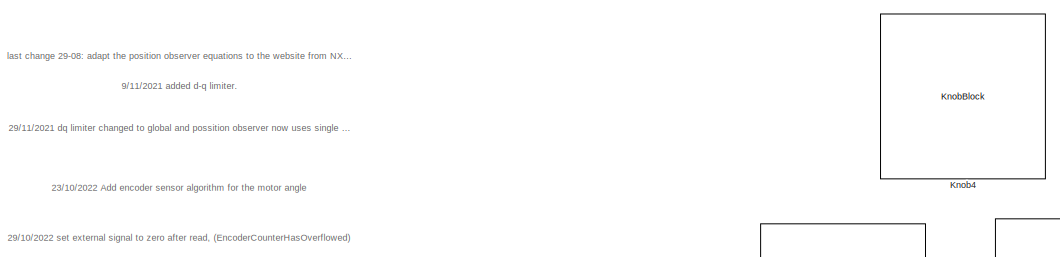
[diagram: root canvas - part 1/5, top right region]
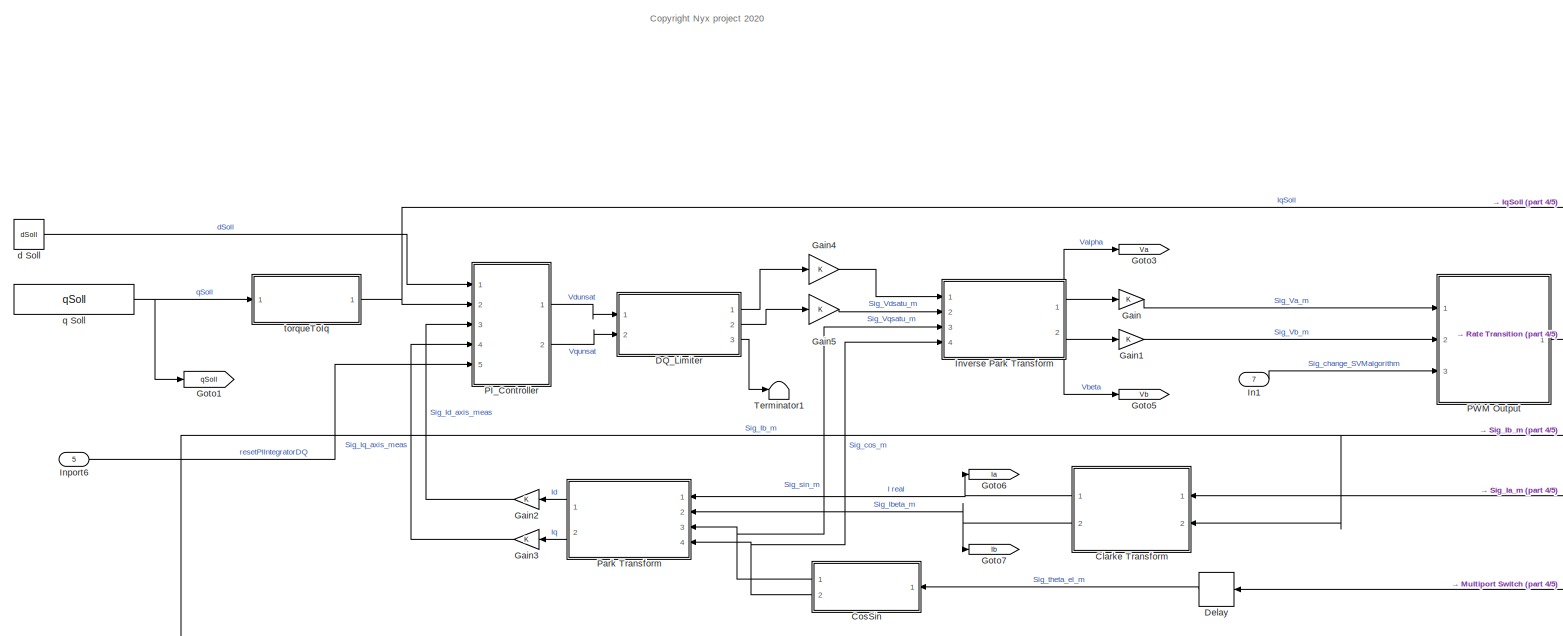
[diagram: root canvas - part 2/5, top left region]
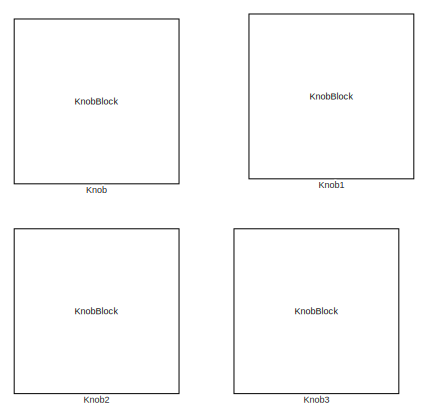
[diagram: root canvas - part 3/5, top right region]
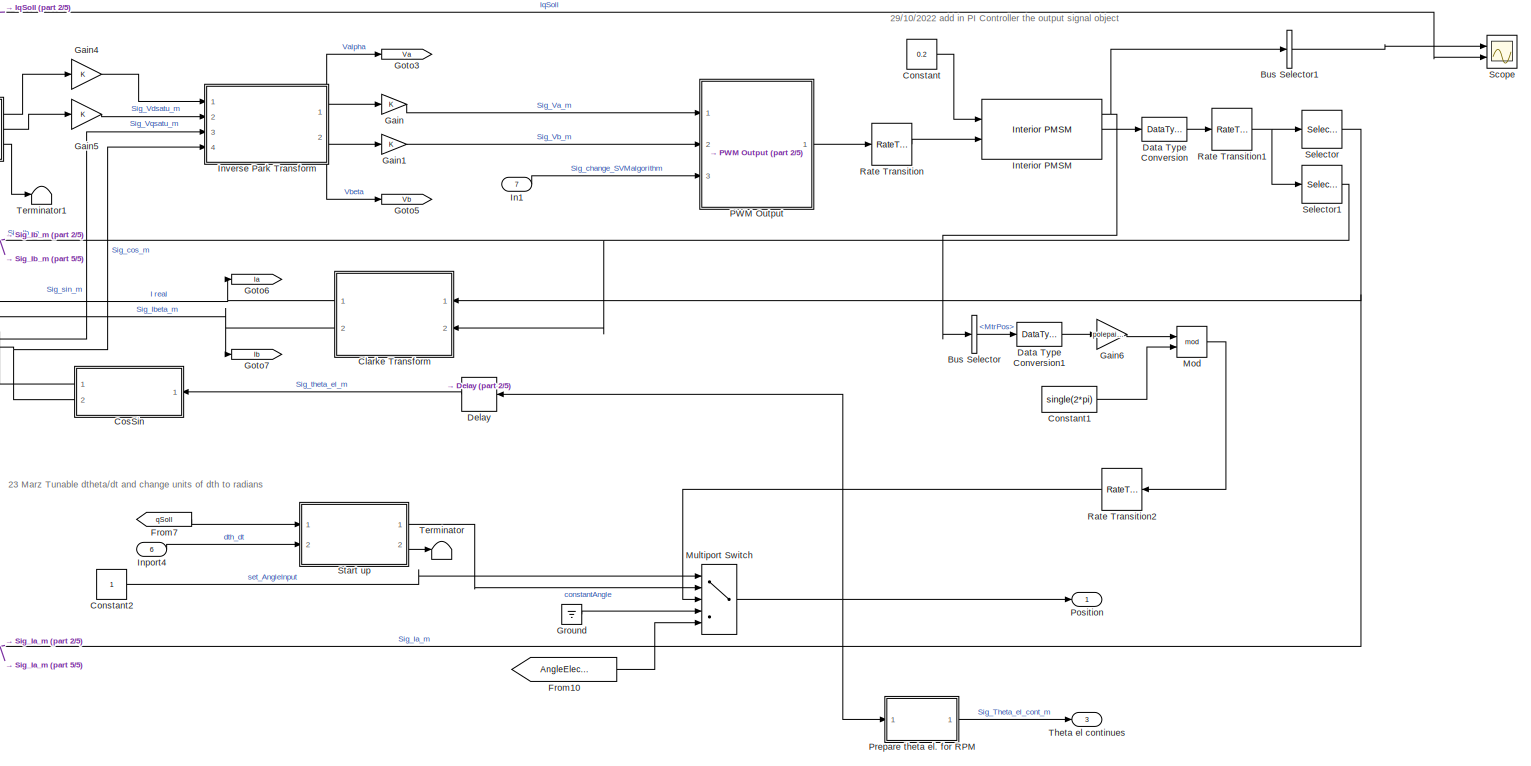
[diagram: root canvas - part 4/5, central region]
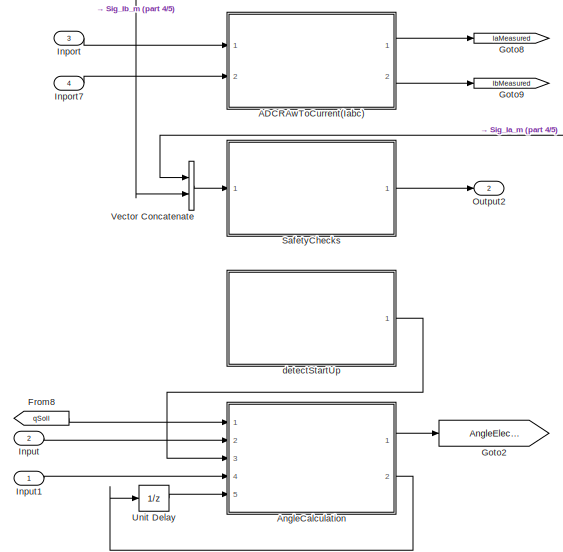
[diagram: root canvas - part 5/5, bottom left region]
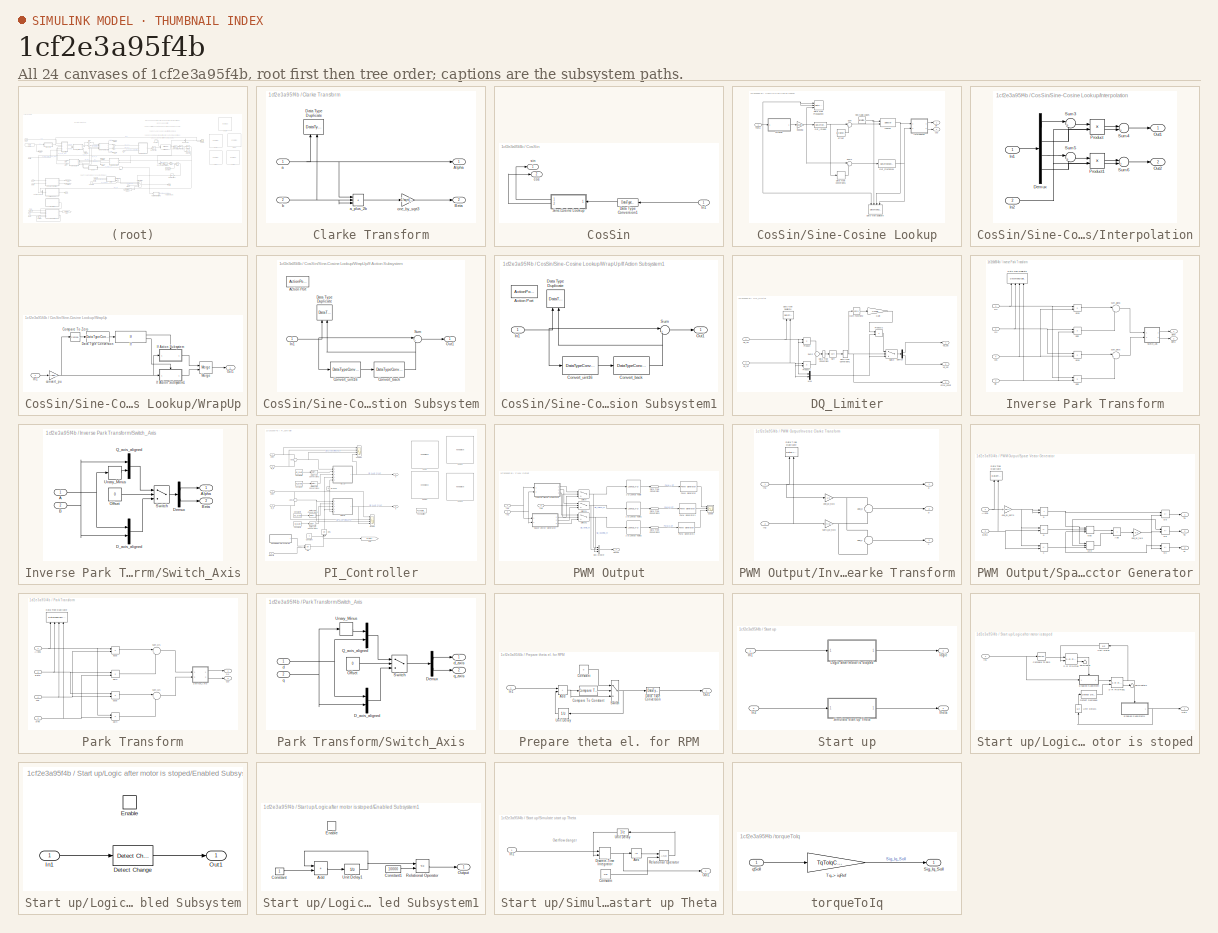
[diagram: thumbnail index - all 24 canvases of the model, root first then tree order]
MODEL slx_1cf2e3a95f4b
KIND model
CONFIG AbsTol = auto
CONFIG EnableMultiTasking = off
CONFIG FixedStep = 1e-6
CONFIG MaxStep = auto
CONFIG MinStep = auto
CONFIG RelTol = 1e-3
CONFIG SampleTimeConstraint = Unconstrained
CONFIG SolverName = FixedStepDiscrete
CONFIG StartTime = 0.0
CONFIG StopTime = 10
BLOCK [ModelReference] ADCRAwToCurrent(Iabc)
  ModelNameDialog = ADCRawToIab
  ModelReferenceVersion = 3.11
  Ports = [2, 2]
BLOCK [ModelReference] AngleCalculation
  ModelNameDialog = ConvertPWMtoAngle.slx
  ModelReferenceVersion = 3.7
  Ports = [5, 2]
BLOCK [BusSelector] Bus Selector
  OutputSignals = MtrPos
  Ports = [1, 1]
BLOCK [BusSelector] Bus Selector1
  OutputAsBus = on
  OutputSignals = MtrPos,IcStator,IbStator,IaStator
  Ports = [1, 1]
BLOCK [SubSystem] Clarke Transform
  NameLocation = top
  Ports = [2, 2]
  RequestExecContextInheritance = off
  VariantControl = Variant2
BLOCK [Outport] Clarke Transform/Alpha
  VectorParamsAs1DForOutWhenUnconnected = off
BLOCK [Outport] Clarke Transform/Beta
  Port = 2
  VectorParamsAs1DForOutWhenUnconnected = off
BLOCK [DataTypeDuplicate] Clarke Transform/Data Type Duplicate
  NameLocation = right
  Ports = [2]
BLOCK [Inport] Clarke Transform/a
BLOCK [Sum] Clarke Transform/a_plus_2b
  AccumDataTypeStr = Inherit: Same as first input
  IconShape = rectangular
  Inputs = +++
  OutDataTypeStr = Inherit: Same as first input
  Ports = [3, 1]
  RndMeth = Simplest
BLOCK [Inport] Clarke Transform/b
  Port = 2
BLOCK [Gain] Clarke Transform/one_by_sqrt3
  Gain = 1/sqrt(3)
  OutDataTypeStr = Inherit: Same as input
  RndMeth = Simplest
BLOCK [Constant] Constant
  Value = 0.2
BLOCK [Constant] Constant1
  OutDataTypeStr = single
  Value = single(2*pi)
BLOCK [Constant] Constant2
BLOCK [SubSystem] CosSin
  NameLocation = top
  Ports = [1, 2]
  RequestExecContextInheritance = off
BLOCK [DataTypeConversion] CosSin/Data Type Conversion1
  NameLocation = top
  RndMeth = Floor
  SaturateOnIntegerOverflow = off
BLOCK [Inport] CosSin/In1
BLOCK [SubSystem] CosSin/Sine-Cosine Lookup
  NameLocation = top
  Ports = [1, 2]
  RequestExecContextInheritance = off
BLOCK [DataTypeConversion] CosSin/Sine-Cosine Lookup/Data Type Conversion1
  RndMeth = Simplest
  SaturateOnIntegerOverflow = off
BLOCK [DataTypeDuplicate] CosSin/Sine-Cosine Lookup/Data Type Duplicate
  NameLocation = left
  NumInputPorts = 4
  Ports = [4]
BLOCK [Reference] CosSin/Sine-Cosine Lookup/Data Type Propagation  REF=simulink/Signal
Attributes/Data Type
Propagation
  Ports = [3]
  SourceBlock = simulink/Signal\nAttributes/Data Type\nPropagation
  SourceProductBaseCode = SL
  SourceType = Data Type Propagation
BLOCK [DataTypeConversion] CosSin/Sine-Cosine Lookup/Get_FractionVal
  RndMeth = Simplest
  SaturateOnIntegerOverflow = off
BLOCK [DataTypeConversion] CosSin/Sine-Cosine Lookup/Get_Integer
  OutDataTypeStr = uint16
  RndMeth = Simplest
  SaturateOnIntegerOverflow = off
BLOCK [SubSystem] CosSin/Sine-Cosine Lookup/Interpolation
  Ports = [2, 2]
  RequestExecContextInheritance = off
BLOCK [Demux] CosSin/Sine-Cosine Lookup/Interpolation/Demux
  Ports = [1, 4]
BLOCK [Inport] CosSin/Sine-Cosine Lookup/Interpolation/In1
BLOCK [Inport] CosSin/Sine-Cosine Lookup/Interpolation/In2
  Port = 2
BLOCK [Outport] CosSin/Sine-Cosine Lookup/Interpolation/Out1
BLOCK [Outport] CosSin/Sine-Cosine Lookup/Interpolation/Out2
  Port = 2
BLOCK [Product] CosSin/Sine-Cosine Lookup/Interpolation/Product
  OutDataTypeStr = Inherit: Same as first input
  Ports = [2, 1]
  RndMeth = Simplest
BLOCK [Product] CosSin/Sine-Cosine Lookup/Interpolation/Product1
  OutDataTypeStr = Inherit: Same as first input
  Ports = [2, 1]
  RndMeth = Simplest
BLOCK [Sum] CosSin/Sine-Cosine Lookup/Interpolation/Sum3
  AccumDataTypeStr = Inherit: Same as first input
  Inputs = |+-
  OutDataTypeStr = Inherit: Same as first input
  Ports = [2, 1]
  RndMeth = Simplest
BLOCK [Sum] CosSin/Sine-Cosine Lookup/Interpolation/Sum4
  AccumDataTypeStr = Inherit: Same as first input
  Inputs = |++
  OutDataTypeStr = Inherit: Same as first input
  Ports = [2, 1]
  RndMeth = Simplest
BLOCK [Sum] CosSin/Sine-Cosine Lookup/Interpolation/Sum5
  AccumDataTypeStr = Inherit: Same as first input
  Inputs = |+-
  OutDataTypeStr = Inherit: Same as first input
  Ports = [2, 1]
  RndMeth = Simplest
BLOCK [Sum] CosSin/Sine-Cosine Lookup/Interpolation/Sum6
  AccumDataTypeStr = Inherit: Same as first input
  Inputs = |++
  OutDataTypeStr = Inherit: Same as first input
  Ports = [2, 1]
  RndMeth = Simplest
BLOCK [Selector] CosSin/Sine-Cosine Lookup/Lookup
  IndexMode = Zero-based
  IndexOptions = Index vector (port)
  Indices = [1 3]
  InputPortWidth = dlgSett.size
  OutputSizes = 1
  Ports = [2, 1]
BLOCK [Sum] CosSin/Sine-Cosine Lookup/Sum
  AccumDataTypeStr = uint32
  Inputs = |++
  OutDataTypeStr = uint32
  Ports = [2, 1]
  RndMeth = Simplest
BLOCK [Sum] CosSin/Sine-Cosine Lookup/Sum2
  AccumDataTypeStr = Inherit: Same as first input
  Inputs = |+-
  OutDataTypeStr = Inherit: Same as first input
  Ports = [2, 1]
  RndMeth = Simplest
BLOCK [Inport] CosSin/Sine-Cosine Lookup/Theta
BLOCK [SubSystem] CosSin/Sine-Cosine Lookup/WrapUp
  Ports = [1, 1]
  RequestExecContextInheritance = off
BLOCK [Reference] CosSin/Sine-Cosine Lookup/WrapUp/Compare To Zero  REF=simulink/Logic and Bit
Operations/Compare
To Zero
  Ports = [1, 1]
  SourceBlock = simulink/Logic and Bit\nOperations/Compare\nTo Zero
  SourceProductBaseCode = SL
  SourceType = Compare To Zero
BLOCK [DataTypeConversion] CosSin/Sine-Cosine Lookup/WrapUp/Data Type Conversion
  ConvertRealWorld = Stored Integer (SI)
  OutDataTypeStr = uint16
  RndMeth = Simplest
  SaturateOnIntegerOverflow = off
BLOCK [If] CosSin/Sine-Cosine Lookup/WrapUp/If
  Ports = [1, 2]
BLOCK [SubSystem] CosSin/Sine-Cosine Lookup/WrapUp/If Action Subsystem
  Ports = [1, 1, 0, 0, 0, 0, 0, 1]
  RequestExecContextInheritance = off
  TreatAsAtomicUnit = on
BLOCK [ActionPort] CosSin/Sine-Cosine Lookup/WrapUp/If Action Subsystem/Action Port
  ActionPortLabel = if(u1 > 0)
BLOCK [DataTypeConversion] CosSin/Sine-Cosine Lookup/WrapUp/If Action Subsystem/Convert_back
  RndMeth = Simplest
  SaturateOnIntegerOverflow = off
BLOCK [DataTypeConversion] CosSin/Sine-Cosine Lookup/WrapUp/If Action Subsystem/Convert_uint16
  OutDataTypeStr = int16
  RndMeth = Floor
  SaturateOnIntegerOverflow = off
BLOCK [DataTypeDuplicate] CosSin/Sine-Cosine Lookup/WrapUp/If Action Subsystem/Data Type Duplicate
  NameLocation = right
  Ports = [2]
BLOCK [Inport] CosSin/Sine-Cosine Lookup/WrapUp/If Action Subsystem/In1
BLOCK [Outport] CosSin/Sine-Cosine Lookup/WrapUp/If Action Subsystem/Out1
BLOCK [Sum] CosSin/Sine-Cosine Lookup/WrapUp/If Action Subsystem/Sum
  Inputs = |+-
  OutDataTypeStr = Inherit: Same as first input
  Ports = [2, 1]
  RndMeth = Simplest
BLOCK [SubSystem] CosSin/Sine-Cosine Lookup/WrapUp/If Action Subsystem1
  Ports = [1, 1, 0, 0, 0, 0, 0, 1]
  RequestExecContextInheritance = off
  TreatAsAtomicUnit = on
BLOCK [ActionPort] CosSin/Sine-Cosine Lookup/WrapUp/If Action Subsystem1/Action Port
  ActionPortLabel = else
BLOCK [DataTypeConversion] CosSin/Sine-Cosine Lookup/WrapUp/If Action Subsystem1/Convert_back
  RndMeth = Simplest
  SaturateOnIntegerOverflow = off
BLOCK [DataTypeConversion] CosSin/Sine-Cosine Lookup/WrapUp/If Action Subsystem1/Convert_uint16
  OutDataTypeStr = int16
  RndMeth = Simplest
  SaturateOnIntegerOverflow = off
BLOCK [DataTypeDuplicate] CosSin/Sine-Cosine Lookup/WrapUp/If Action Subsystem1/Data Type Duplicate
  NameLocation = right
  Ports = [2]
BLOCK [Inport] CosSin/Sine-Cosine Lookup/WrapUp/If Action Subsystem1/In1
BLOCK [Outport] CosSin/Sine-Cosine Lookup/WrapUp/If Action Subsystem1/Out1
BLOCK [Sum] CosSin/Sine-Cosine Lookup/WrapUp/If Action Subsystem1/Sum
  Inputs = |+-
  OutDataTypeStr = Inherit: Same as first input
  Ports = [2, 1]
  RndMeth = Simplest
BLOCK [Inport] CosSin/Sine-Cosine Lookup/WrapUp/In1
BLOCK [Merge] CosSin/Sine-Cosine Lookup/WrapUp/Merge
  Ports = [2, 1]
BLOCK [Outport] CosSin/Sine-Cosine Lookup/WrapUp/Out1
BLOCK [Gain] CosSin/Sine-Cosine Lookup/WrapUp/convert_pu
  Gain = 1/(dlgSett.UpperSatLimit)
  OutDataTypeStr = Inherit: Same as input
  RndMeth = Simplest
BLOCK [Outport] CosSin/Sine-Cosine Lookup/cos
  Port = 2
  VectorParamsAs1DForOutWhenUnconnected = off
BLOCK [Gain] CosSin/Sine-Cosine Lookup/indexing
  Gain = dlgSett.index_gain
  OutDataTypeStr = Inherit: Inherit via back propagation
  RndMeth = Simplest
BLOCK [Constant] CosSin/Sine-Cosine Lookup/offset
  OutDataTypeStr = int16
  SampleTime = -1
  Value = [1 0 (dlgSett.Offset+1) dlgSett.Offset]
BLOCK [Outport] CosSin/Sine-Cosine Lookup/sin
  NameLocation = top
  VectorParamsAs1DForOutWhenUnconnected = off
BLOCK [Constant] CosSin/Sine-Cosine Lookup/sine_table_values
  NameLocation = top
  OutDataTypeStr = Inherit: Inherit via back propagation
  SampleTime = -1
  Value = dlgSett.sin_table
BLOCK [Outport] CosSin/cos
  Port = 2
BLOCK [Outport] CosSin/sin
BLOCK [SubSystem] DQ_Limiter
  Ports = [2, 3]
  RTWFcnNameOpts = Use subsystem name
  RTWSystemCode = Reusable function
  RequestExecContextInheritance = off
  SystemSampleTime = 4*Ts
  TreatAsAtomicUnit = on
BLOCK [DataTypeConversion] DQ_Limiter/Data Type Conversion
  OutDataTypeStr = single
  RndMeth = Floor
  SaturateOnIntegerOverflow = off
BLOCK [DataTypeConversion] DQ_Limiter/Data Type Conversion1
  RndMeth = Floor
  SaturateOnIntegerOverflow = off
BLOCK [DataTypeDuplicate] DQ_Limiter/Data Type Duplicate
  NameLocation = right
  Ports = [2]
BLOCK [Demux] DQ_Limiter/Demux
  Outputs = 2
  Ports = [1, 2]
BLOCK [Gain] DQ_Limiter/Gain
  Gain = Vmax
  OutDataTypeStr = Inherit: Same as input
BLOCK [Math] DQ_Limiter/Math Function2
  Operator = reciprocal
  Ports = [1, 1]
  RndMeth = Simplest
  SaturateOnIntegerOverflow = off
  SignedPower = on
BLOCK [Mux] DQ_Limiter/Mux
  DisplayOption = bar
  Inputs = 2
  Ports = [2, 1]
BLOCK [Product] DQ_Limiter/Product
  OutDataTypeStr = Inherit: Same as first input
  Ports = [2, 1]
  RndMeth = Simplest
BLOCK [Product] DQ_Limiter/Product1
  OutDataTypeStr = Inherit: Same as first input
  Ports = [2, 1]
  RndMeth = Simplest
BLOCK [Product] DQ_Limiter/Product2
  OutDataTypeStr = Inherit: Same as first input
  Ports = [2, 1]
BLOCK [Sqrt] DQ_Limiter/Sqrt
  IntermediateResultsDataTypeStr = Inherit: Inherit from input
BLOCK [Sum] DQ_Limiter/Sum2
  AccumDataTypeStr = Inherit: Same as first input
  OutDataTypeStr = Inherit: Same as first input
  Ports = [2, 1]
BLOCK [Switch] DQ_Limiter/Switch
  InputSameDT = off
  SaturateOnIntegerOverflow = off
  Threshold = Vmax
  ZeroCross = off
BLOCK [Inport] DQ_Limiter/Vd_ref
BLOCK [Outport] DQ_Limiter/Vd_sat
  NameLocation = top
  VectorParamsAs1DForOutWhenUnconnected = off
BLOCK [Outport] DQ_Limiter/Vmax_unsat
  Port = 3
  VectorParamsAs1DForOutWhenUnconnected = off
BLOCK [Inport] DQ_Limiter/Vq_ref
  Port = 2
BLOCK [Outport] DQ_Limiter/Vq_sat
  Port = 2
  VectorParamsAs1DForOutWhenUnconnected = off
BLOCK [DataTypeConversion] Data Type Conversion
  RndMeth = Floor
  SaturateOnIntegerOverflow = off
BLOCK [DataTypeConversion] Data Type Conversion1
  RndMeth = Floor
  SaturateOnIntegerOverflow = off
BLOCK [Delay] Delay
  AttributesFormatString = %<SampleTime>
  Commented = through
  DelayLength = 1
  InputPortMap = u0
  NameLocation = top
  Ports = [1, 1]
  SampleTime = 4*Ts
BLOCK [From] From10
  GotoTag = AngleElecSensor
BLOCK [From] From7
  GotoTag = qSoll
BLOCK [From] From8
  GotoTag = qSoll
BLOCK [Gain] Gain
  OutDataTypeStr = Inherit: Same as input
  ParamDataTypeStr = Inherit: Same as input
BLOCK [Gain] Gain1
  OutDataTypeStr = Inherit: Same as input
  ParamDataTypeStr = Inherit: Same as input
BLOCK [Gain] Gain2
  NameLocation = top
  OutDataTypeStr = Inherit: Same as input
  ParamDataTypeStr = Inherit: Same as input
BLOCK [Gain] Gain3
  NameLocation = top
  OutDataTypeStr = Inherit: Same as input
  ParamDataTypeStr = Inherit: Same as input
BLOCK [Gain] Gain4
  OutDataTypeStr = Inherit: Inherit via back propagation
BLOCK [Gain] Gain5
  OutDataTypeStr = Inherit: Inherit via back propagation
BLOCK [Gain] Gain6
  Gain = polepairs
BLOCK [Goto] Goto1
  GotoTag = qSoll
BLOCK [Goto] Goto2
  GotoTag = AngleElecSensor
BLOCK [Goto] Goto3
  GotoTag = Va
BLOCK [Goto] Goto5
  GotoTag = Vb
BLOCK [Goto] Goto6
  GotoTag = Ia
BLOCK [Goto] Goto7
  GotoTag = Ib
BLOCK [Goto] Goto8
  GotoTag = IaMeasured
BLOCK [Goto] Goto9
  GotoTag = IbMeasured
BLOCK [Ground] Ground
BLOCK [Inport] In1
  Port = 7
BLOCK [Inport] Inport
  Port = 3
BLOCK [Inport] Inport4
  Port = 6
BLOCK [Inport] Inport6
  OutDataTypeStr = boolean
  Port = 5
BLOCK [Inport] Inport7
  Port = 4
BLOCK [Inport] Input
  Port = 2
BLOCK [Inport] Input1
BLOCK [Reference] Interior PMSM  REF=autolibpmsminterior/Interior PMSM
  Ports = [2, 3]
  SourceBlock = autolibpmsminterior/Interior PMSM
  SourceProductBaseCode = PW,MT,UV,VE,VP
  SourceType = Interior PMSM
BLOCK [SubSystem] Inverse Park Transform
  Ports = [4, 2]
  RequestExecContextInheritance = off
  SystemSampleTime = 250*Ts
BLOCK [Outport] Inverse Park Transform/Alpha
  VectorParamsAs1DForOutWhenUnconnected = off
BLOCK [Outport] Inverse Park Transform/Beta
  Port = 2
  VectorParamsAs1DForOutWhenUnconnected = off
BLOCK [DataTypeDuplicate] Inverse Park Transform/Data Type Duplicate
  NameLocation = right
  NumInputPorts = 4
  Ports = [4]
BLOCK [Inport] Inverse Park Transform/Ds
BLOCK [Inport] Inverse Park Transform/Qs
  Port = 2
BLOCK [SubSystem] Inverse Park Transform/Switch_Axis
  NameLocation = top
  Ports = [2, 2]
  RequestExecContextInheritance = off
BLOCK [Inport] Inverse Park Transform/Switch_Axis/A
BLOCK [Outport] Inverse Park Transform/Switch_Axis/Alpha
  VectorParamsAs1DForOutWhenUnconnected = off
BLOCK [Inport] Inverse Park Transform/Switch_Axis/B
  Port = 2
BLOCK [Outport] Inverse Park Transform/Switch_Axis/Beta
  Port = 2
  VectorParamsAs1DForOutWhenUnconnected = off
BLOCK [Mux] Inverse Park Transform/Switch_Axis/D_axis_aligned
  DisplayOption = bar
  Inputs = 2
  NameLocation = top
  Ports = [2, 1]
BLOCK [Demux] Inverse Park Transform/Switch_Axis/Demux
  Outputs = 2
  Ports = [1, 2]
BLOCK [Constant] Inverse Park Transform/Switch_Axis/Offset
  OutDataTypeStr = uint16
  SampleTime = -1
  Value = 0
BLOCK [Mux] Inverse Park Transform/Switch_Axis/Q_axis_aligned
  DisplayOption = bar
  Inputs = 2
  NameLocation = top
  Ports = [2, 1]
BLOCK [Switch] Inverse Park Transform/Switch_Axis/Switch
  Criteria = u2 > Threshold
  InputSameDT = off
  RndMeth = Simplest
  SaturateOnIntegerOverflow = off
  Threshold = 1
  ZeroCross = off
BLOCK [UnaryMinus] Inverse Park Transform/Switch_Axis/Unary_Minus
BLOCK [Inport] Inverse Park Transform/cos
  Port = 4
BLOCK [Product] Inverse Park Transform/dcos
  OutDataTypeStr = Inherit: Same as first input
  Ports = [2, 1]
  RndMeth = Simplest
BLOCK [Product] Inverse Park Transform/dsin
  OutDataTypeStr = Inherit: Same as first input
  Ports = [2, 1]
  RndMeth = Simplest
BLOCK [Product] Inverse Park Transform/qcos
  OutDataTypeStr = Inherit: Same as first input
  Ports = [2, 1]
  RndMeth = Simplest
BLOCK [Product] Inverse Park Transform/qsin
  OutDataTypeStr = Inherit: Same as first input
  Ports = [2, 1]
  RndMeth = Simplest
BLOCK [Inport] Inverse Park Transform/sin
  Port = 3
BLOCK [Sum] Inverse Park Transform/sum_alpha
  AccumDataTypeStr = Inherit: Same as first input
  Inputs = |+-
  NameLocation = top
  OutDataTypeStr = Inherit: Same as first input
  Ports = [2, 1]
  RndMeth = Simplest
BLOCK [Sum] Inverse Park Transform/sum_beta
  AccumDataTypeStr = Inherit: Same as first input
  Inputs = |++
  NameLocation = top
  OutDataTypeStr = Inherit: Same as first input
  Ports = [2, 1]
  RndMeth = Simplest
BLOCK [KnobBlock] Knob
  ScaleMax = 3
BLOCK [KnobBlock] Knob1
  ScaleMax = 3
BLOCK [KnobBlock] Knob2
  ScaleMax = 3
BLOCK [KnobBlock] Knob3
  ScaleMax = 3
BLOCK [KnobBlock] Knob4
  ScaleMax = 3
BLOCK [Math] Mod
  Operator = mod
  OutputSignalType = real
  Ports = [2, 1]
BLOCK [MultiPortSwitch] Multiport Switch
  DataPortOrder = Zero-based contiguous
  InputSameDT = off
  Inputs = 4
  Ports = [5, 1]
  SaturateOnIntegerOverflow = off
  zeroidx = on
BLOCK [Outport] Output2
  Port = 2
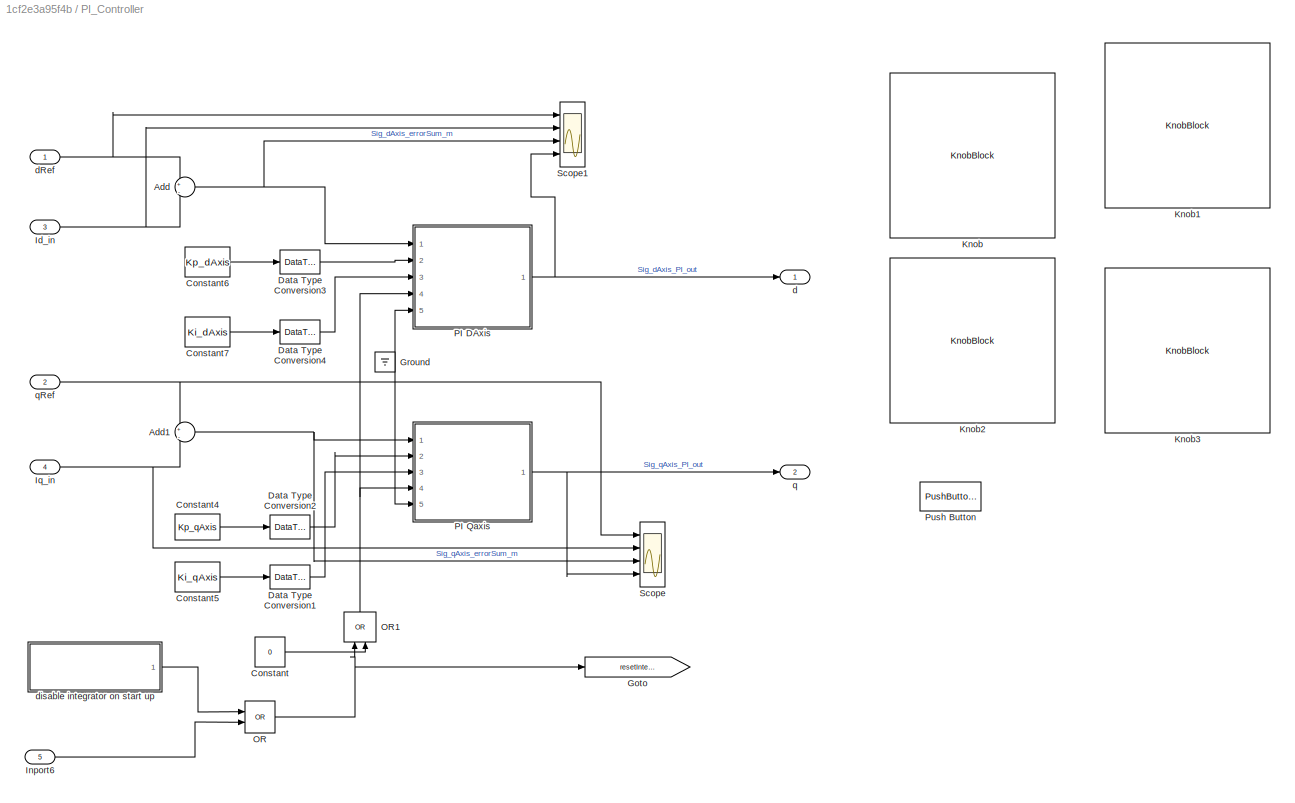
BLOCK [SubSystem] PI_Controller
  Ports = [5, 2]
  RTWFcnNameOpts = Use subsystem name
  RequestExecContextInheritance = off
  SystemSampleTime = 4*Ts
  TreatAsAtomicUnit = on
BLOCK [Sum] PI_Controller/Add
  Inputs = +|-
  Ports = [2, 1]
  RndMeth = Simplest
BLOCK [Sum] PI_Controller/Add1
  Inputs = +|-
  Ports = [2, 1]
  RndMeth = Simplest
BLOCK [Constant] PI_Controller/Constant
  OutDataTypeStr = boolean
  Value = 0
BLOCK [Constant] PI_Controller/Constant4
  Value = Kp_qAxis
BLOCK [Constant] PI_Controller/Constant5
  Value = Ki_qAxis
BLOCK [Constant] PI_Controller/Constant6
  Value = Kp_dAxis
BLOCK [Constant] PI_Controller/Constant7
  Value = Ki_dAxis
BLOCK [DataTypeConversion] PI_Controller/Data Type Conversion1
  OutDataTypeStr = single
  RndMeth = Floor
  SaturateOnIntegerOverflow = off
BLOCK [DataTypeConversion] PI_Controller/Data Type Conversion2
  OutDataTypeStr = single
  RndMeth = Floor
  SaturateOnIntegerOverflow = off
BLOCK [DataTypeConversion] PI_Controller/Data Type Conversion3
  OutDataTypeStr = single
  RndMeth = Floor
  SaturateOnIntegerOverflow = off
BLOCK [DataTypeConversion] PI_Controller/Data Type Conversion4
  OutDataTypeStr = single
  RndMeth = Floor
  SaturateOnIntegerOverflow = off
BLOCK [Goto] PI_Controller/Goto
  GotoTag = resetIntegrator
BLOCK [Ground] PI_Controller/Ground
BLOCK [Inport] PI_Controller/Id_in
  NameLocation = top
  Port = 3
BLOCK [Inport] PI_Controller/Inport6
  NameLocation = top
  Port = 5
BLOCK [Inport] PI_Controller/Iq_in
  NameLocation = top
  Port = 4
BLOCK [KnobBlock] PI_Controller/Knob
  ScaleMax = 1
BLOCK [KnobBlock] PI_Controller/Knob1
  ScaleMax = 1
BLOCK [KnobBlock] PI_Controller/Knob2
  ScaleMax = 200
BLOCK [KnobBlock] PI_Controller/Knob3
  ScaleMax = 200
BLOCK [Logic] PI_Controller/OR
  AllPortsSameDT = off
  IconShape = distinctive
  Operator = OR
  OutDataTypeStr = boolean
  Ports = [2, 1]
BLOCK [Logic] PI_Controller/OR1
  AllPortsSameDT = off
  IconShape = distinctive
  NameLocation = right
  Operator = OR
  OutDataTypeStr = boolean
  Ports = [2, 1]
BLOCK [SubSystem] PI_Controller/PI DAxis
  Ports = [5, 1]
  RTWSystemCode = Reusable function
  ReferencedSubsystem = PID_custom
  RequestExecContextInheritance = off
  TreatAsAtomicUnit = on
BLOCK [SubSystem] PI_Controller/PI Qaxis
  Ports = [5, 1]
  RTWSystemCode = Reusable function
  ReferencedSubsystem = PID_custom
  RequestExecContextInheritance = off
  TreatAsAtomicUnit = on
BLOCK [PushButtonBlock] PI_Controller/Push Button
BLOCK [Scope] PI_Controller/Scope
  Floating = off
  NumInputPorts = 4
  Ports = [4]
  ScopeSpecificationString = Simulink.scopes.TimeScopeBlockCfg('CurrentConfiguration', extmgr.ConfigurationSet(extmgr.Configuration('Core','General UI',true),extmgr.Configuration('Core','Source UI',true),extmgr.Configuration('Sources','WiredSimulink',true,'DataLoggingVariableName','ScopeData2'),extmgr.Configuration('Visuals','Time Domain',true,'SerializedDisplays',{struct('MinYLimReal','-7.53632','MaxYLimReal','9.86835','YLab...<+1602ch>
BLOCK [Scope] PI_Controller/Scope1
  Floating = off
  NumInputPorts = 4
  Ports = [4]
  ScopeSpecificationString = Simulink.scopes.TimeScopeBlockCfg('CurrentConfiguration', extmgr.ConfigurationSet(extmgr.Configuration('Core','General UI',true),extmgr.Configuration('Core','Source UI',true),extmgr.Configuration('Sources','WiredSimulink',true,'DataLoggingVariableName','ScopeData3'),extmgr.Configuration('Visuals','Time Domain',true,'SerializedDisplays',{struct('MinYLimReal','-0.02326','MaxYLimReal','0.03206','YLab...<+1603ch>
BLOCK [Outport] PI_Controller/d
BLOCK [Inport] PI_Controller/dRef
BLOCK [SubSystem] PI_Controller/disable integrator on start up
  Ports = [0, 1]
  ReferencedSubsystem = disable_integrator_on_start_up
  RequestExecContextInheritance = off
BLOCK [Outport] PI_Controller/q
  Port = 2
BLOCK [Inport] PI_Controller/qRef
  Port = 2
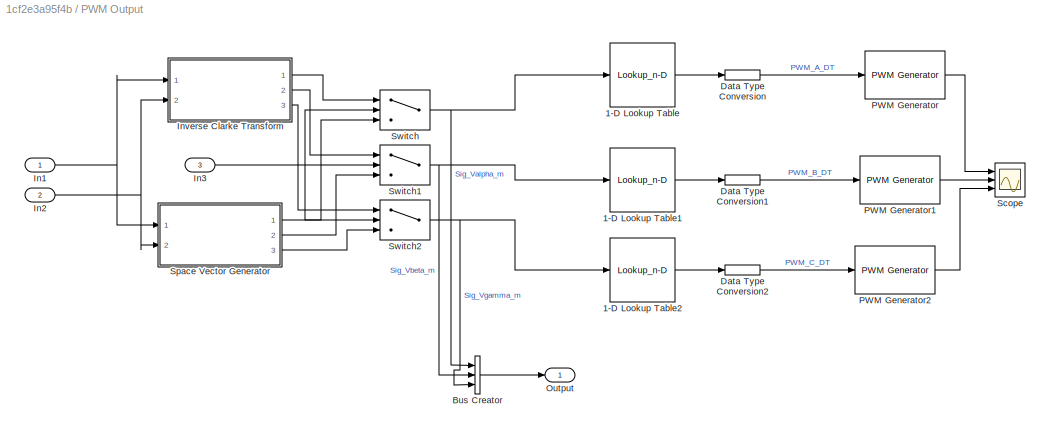
BLOCK [SubSystem] PWM Output
  Ports = [3, 1]
  RequestExecContextInheritance = off
BLOCK [Lookup_n-D] PWM Output/1-D Lookup Table
  BreakpointsForDimension1 = BrkPoints
  ExtrapMethod = Clip
  InputPortMap = u0
  InternalRulePriority = Speed
  NumberOfTableDimensions = 1
  OutDataTypeStr = uint16
  Ports = [1, 1]
  RndMeth = Simplest
  SaturateOnIntegerOverflow = on
  Table = pwmTableData
BLOCK [Lookup_n-D] PWM Output/1-D Lookup Table1
  BreakpointsForDimension1 = BrkPoints
  ExtrapMethod = Clip
  InputPortMap = u0
  InternalRulePriority = Speed
  NumberOfTableDimensions = 1
  OutDataTypeStr = uint16
  Ports = [1, 1]
  RndMeth = Simplest
  SaturateOnIntegerOverflow = on
  Table = pwmTableData
BLOCK [Lookup_n-D] PWM Output/1-D Lookup Table2
  BreakpointsForDimension1 = BrkPoints
  ExtrapMethod = Clip
  InputPortMap = u0
  InternalRulePriority = Speed
  NumberOfTableDimensions = 1
  OutDataTypeStr = uint16
  Ports = [1, 1]
  RndMeth = Simplest
  SaturateOnIntegerOverflow = on
  Table = pwmTableData
BLOCK [BusCreator] PWM Output/Bus Creator
  DisplayOption = bar
  InheritFromInputs = on
  Inputs = 3
  Ports = [3, 1]
BLOCK [DataTypeConversion] PWM Output/Data Type Conversion
  RndMeth = Floor
  SaturateOnIntegerOverflow = off
BLOCK [DataTypeConversion] PWM Output/Data Type Conversion1
  RndMeth = Floor
  SaturateOnIntegerOverflow = off
BLOCK [DataTypeConversion] PWM Output/Data Type Conversion2
  RndMeth = Floor
  SaturateOnIntegerOverflow = off
BLOCK [Inport] PWM Output/In1
BLOCK [Inport] PWM Output/In2
  Port = 2
BLOCK [Inport] PWM Output/In3
  Port = 3
BLOCK [SubSystem] PWM Output/Inverse Clarke Transform
  Ports = [2, 3]
  RequestExecContextInheritance = off
  TreatAsAtomicUnit = on
BLOCK [DataTypeDuplicate] PWM Output/Inverse Clarke Transform/Data Type Duplicate
  NameLocation = right
  Ports = [2]
BLOCK [Inport] PWM Output/Inverse Clarke Transform/In1
BLOCK [Inport] PWM Output/Inverse Clarke Transform/In2
  Port = 2
BLOCK [Outport] PWM Output/Inverse Clarke Transform/a
  VectorParamsAs1DForOutWhenUnconnected = off
BLOCK [Sum] PWM Output/Inverse Clarke Transform/add_b
  AccumDataTypeStr = Inherit: Same as first input
  Inputs = -+
  OutDataTypeStr = Inherit: Same as first input
  Ports = [2, 1]
  RndMeth = Simplest
BLOCK [Sum] PWM Output/Inverse Clarke Transform/add_c
  AccumDataTypeStr = Inherit: Same as first input
  Inputs = --
  OutDataTypeStr = Inherit: Same as first input
  Ports = [2, 1]
  RndMeth = Simplest
BLOCK [Outport] PWM Output/Inverse Clarke Transform/b
  Port = 2
  VectorParamsAs1DForOutWhenUnconnected = off
BLOCK [Outport] PWM Output/Inverse Clarke Transform/c
  Port = 3
  VectorParamsAs1DForOutWhenUnconnected = off
BLOCK [Gain] PWM Output/Inverse Clarke Transform/one_by_two
  Gain = 1/2
  NameLocation = top
  OutDataTypeStr = Inherit: Same as input
  RndMeth = Simplest
BLOCK [Gain] PWM Output/Inverse Clarke Transform/sqrt3_by_two
  Gain = sqrt(3)/2
  OutDataTypeStr = Inherit: Same as input
  RndMeth = Simplest
BLOCK [Outport] PWM Output/Output
BLOCK [Reference] PWM Output/PWM Generator  REF=eePwmGenerator/PWM Generator
  Commented = on
  Ports = [1, 1]
  SourceBlock = eePwmGenerator/PWM Generator
  SourceProductBaseCode = PS
  SourceType = PWM Generator
BLOCK [Reference] PWM Output/PWM Generator1  REF=eePwmGenerator/PWM Generator
  Commented = on
  Ports = [1, 1]
  SourceBlock = eePwmGenerator/PWM Generator
  SourceProductBaseCode = PS
  SourceType = PWM Generator
BLOCK [Reference] PWM Output/PWM Generator2  REF=eePwmGenerator/PWM Generator
  Commented = on
  Ports = [1, 1]
  SourceBlock = eePwmGenerator/PWM Generator
  SourceProductBaseCode = PS
  SourceType = PWM Generator
BLOCK [Scope] PWM Output/Scope
  Commented = on
  Floating = off
  NumInputPorts = 3
  Ports = [3]
  ScopeSpecificationString = Simulink.scopes.TimeScopeBlockCfg('CurrentConfiguration', extmgr.ConfigurationSet(extmgr.Configuration('Core','General UI',true),extmgr.Configuration('Core','Source UI',true),extmgr.Configuration('Sources','WiredSimulink',true,'DataLoggingVariableName','ScopeData1'),extmgr.Configuration('Visuals','Time Domain',true,'SerializedDisplays',{struct('MinYLimReal','-0.125','MaxYLimReal','1.125','YLabelRe...<+1494ch>
BLOCK [SubSystem] PWM Output/Space Vector Generator
  Ports = [2, 3]
  RequestExecContextInheritance = off
  TreatAsAtomicUnit = on
BLOCK [Sum] PWM Output/Space Vector Generator/Add
  AccumDataTypeStr = Inherit: Same as first input
  IconShape = rectangular
  OutDataTypeStr = Inherit: Same as first input
  Ports = [2, 1]
  RndMeth = Simplest
BLOCK [Inport] PWM Output/Space Vector Generator/Alpha
BLOCK [Inport] PWM Output/Space Vector Generator/Beta
  Port = 2
BLOCK [Sum] PWM Output/Space Vector Generator/Da
  AccumDataTypeStr = Inherit: Same as first input
  IconShape = rectangular
  Inputs = +-
  OutDataTypeStr = Inherit: Same as first input
  Ports = [2, 1]
  RndMeth = Simplest
BLOCK [DataTypeDuplicate] PWM Output/Space Vector Generator/Data Type Duplicate
  NameLocation = right
  Ports = [2]
BLOCK [Sum] PWM Output/Space Vector Generator/Db
  AccumDataTypeStr = Inherit: Same as first input
  IconShape = rectangular
  Inputs = +-
  OutDataTypeStr = Inherit: Same as first input
  Ports = [2, 1]
  RndMeth = Simplest
BLOCK [Sum] PWM Output/Space Vector Generator/Dc
  AccumDataTypeStr = Inherit: Same as first input
  IconShape = rectangular
  Inputs = +-
  OutDataTypeStr = Inherit: Same as first input
  Ports = [2, 1]
  RndMeth = Simplest
BLOCK [MinMax] PWM Output/Space Vector Generator/Max
  Function = max
  Inputs = 3
  Ports = [3, 1]
  RndMeth = Simplest
BLOCK [MinMax] PWM Output/Space Vector Generator/Min
  Inputs = 3
  Ports = [3, 1]
  RndMeth = Simplest
BLOCK [Outport] PWM Output/Space Vector Generator/Ta
  VectorParamsAs1DForOutWhenUnconnected = off
BLOCK [Outport] PWM Output/Space Vector Generator/Tb
  Port = 2
  VectorParamsAs1DForOutWhenUnconnected = off
BLOCK [Outport] PWM Output/Space Vector Generator/Tc
  Port = 3
  VectorParamsAs1DForOutWhenUnconnected = off
BLOCK [Sum] PWM Output/Space Vector Generator/a
  AccumDataTypeStr = Inherit: Same as first input
  IconShape = rectangular
  NameLocation = top
  OutDataTypeStr = Inherit: Same as first input
  Ports = [2, 1]
  RndMeth = Simplest
BLOCK [Sum] PWM Output/Space Vector Generator/b
  AccumDataTypeStr = Inherit: Same as first input
  IconShape = rectangular
  Inputs = -+
  NameLocation = top
  OutDataTypeStr = Inherit: Same as first input
  Ports = [2, 1]
  RndMeth = Simplest
BLOCK [Sum] PWM Output/Space Vector Generator/c
  AccumDataTypeStr = Inherit: Same as first input
  IconShape = rectangular
  Inputs = --
  NameLocation = top
  OutDataTypeStr = Inherit: Same as first input
  Ports = [2, 1]
  RndMeth = Simplest
BLOCK [Gain] PWM Output/Space Vector Generator/one_by_sqrt3
  Gain = 1/sqrt(3)
  NameLocation = top
  OutDataTypeStr = Inherit: Same as input
  ParamDataTypeStr = Inherit: Same as input
  RndMeth = Simplest
BLOCK [Gain] PWM Output/Space Vector Generator/one_by_two
  Gain = 0.5
  NameLocation = top
  OutDataTypeStr = Inherit: Same as input
  ParamDataTypeStr = Inherit: Same as input
  RndMeth = Simplest
BLOCK [Switch] PWM Output/Switch
  Criteria = u2 > Threshold
  InputSameDT = off
  SaturateOnIntegerOverflow = off
BLOCK [Switch] PWM Output/Switch1
  Criteria = u2 > Threshold
  InputSameDT = off
  SaturateOnIntegerOverflow = off
BLOCK [Switch] PWM Output/Switch2
  Criteria = u2 > Threshold
  InputSameDT = off
  SaturateOnIntegerOverflow = off
BLOCK [SubSystem] Park Transform
  NameLocation = top
  Ports = [4, 2]
  RequestExecContextInheritance = off
  SystemSampleTime = 250*Ts
BLOCK [Inport] Park Transform/Alpha
BLOCK [Inport] Park Transform/Beta
  Port = 2
BLOCK [DataTypeDuplicate] Park Transform/Data Type Duplicate
  NameLocation = right
  NumInputPorts = 4
  Ports = [4]
BLOCK [Outport] Park Transform/Ds
  VectorParamsAs1DForOutWhenUnconnected = off
BLOCK [Outport] Park Transform/Qs
  Port = 2
  VectorParamsAs1DForOutWhenUnconnected = off
BLOCK [SubSystem] Park Transform/Switch_Axis
  NameLocation = top
  Ports = [2, 2]
  RequestExecContextInheritance = off
BLOCK [Mux] Park Transform/Switch_Axis/D_axis_aligned
  DisplayOption = bar
  Inputs = 2
  NameLocation = top
  Ports = [2, 1]
BLOCK [Demux] Park Transform/Switch_Axis/Demux
  Outputs = 2
  Ports = [1, 2]
BLOCK [Constant] Park Transform/Switch_Axis/Offset
  OutDataTypeStr = uint16
  SampleTime = -1
  Value = 0
BLOCK [Mux] Park Transform/Switch_Axis/Q_axis_aligned
  DisplayOption = bar
  Inputs = 2
  NameLocation = top
  Ports = [2, 1]
BLOCK [Switch] Park Transform/Switch_Axis/Switch
  Criteria = u2 > Threshold
  InputSameDT = off
  RndMeth = Simplest
  SaturateOnIntegerOverflow = off
  Threshold = 1
  ZeroCross = off
BLOCK [UnaryMinus] Park Transform/Switch_Axis/Unary_Minus
BLOCK [Inport] Park Transform/Switch_Axis/d
BLOCK [Outport] Park Transform/Switch_Axis/d_axis
  VectorParamsAs1DForOutWhenUnconnected = off
BLOCK [Inport] Park Transform/Switch_Axis/q
  Port = 2
BLOCK [Outport] Park Transform/Switch_Axis/q_axis
  Port = 2
  VectorParamsAs1DForOutWhenUnconnected = off
BLOCK [Product] Park Transform/acos
  OutDataTypeStr = Inherit: Same as first input
  Ports = [2, 1]
  RndMeth = Simplest
BLOCK [Product] Park Transform/asin
  OutDataTypeStr = Inherit: Same as first input
  Ports = [2, 1]
  RndMeth = Simplest
BLOCK [Product] Park Transform/bcos
  OutDataTypeStr = Inherit: Inherit via back propagation
  Ports = [2, 1]
  RndMeth = Simplest
BLOCK [Product] Park Transform/bsin
  OutDataTypeStr = Inherit: Inherit via back propagation
  Ports = [2, 1]
  RndMeth = Simplest
BLOCK [Inport] Park Transform/cos
  Port = 4
BLOCK [Inport] Park Transform/sine
  Port = 3
BLOCK [Sum] Park Transform/sum_Ds
  AccumDataTypeStr = Inherit: Same as first input
  Inputs = |++
  NameLocation = top
  OutDataTypeStr = Inherit: Same as first input
  Ports = [2, 1]
  RndMeth = Simplest
BLOCK [Sum] Park Transform/sum_Qs
  AccumDataTypeStr = Inherit: Same as first input
  Inputs = |+-
  NameLocation = top
  OutDataTypeStr = Inherit: Same as first input
  Ports = [2, 1]
  RndMeth = Simplest
BLOCK [Outport] Position
BLOCK [SubSystem] Prepare theta el. for RPM
  Ports = [1, 1]
  RequestExecContextInheritance = off
BLOCK [Sum] Prepare theta el. for RPM/Add
  IconShape = rectangular
  Ports = [2, 1]
BLOCK [Reference] Prepare theta el. for RPM/Compare To Constant  REF=simulink/Logic and Bit
Operations/Compare
To Constant
  Ports = [1, 1]
  SourceBlock = simulink/Logic and Bit\nOperations/Compare\nTo Constant
  SourceProductBaseCode = SL
  SourceType = Compare To Constant
BLOCK [Constant] Prepare theta el. for RPM/Constant
  OutDataTypeStr = single
  Value = 0
BLOCK [DataTypeConversion] Prepare theta el. for RPM/Data Type Conversion
  OutDataTypeStr = single
  RndMeth = Floor
  SaturateOnIntegerOverflow = off
BLOCK [Inport] Prepare theta el. for RPM/In1
BLOCK [Outport] Prepare theta el. for RPM/Out1
BLOCK [Switch] Prepare theta el. for RPM/Switch
  InputSameDT = off
  OutDataTypeStr = single
  SaturateOnIntegerOverflow = off
  Threshold = 1
BLOCK [UnitDelay] Prepare theta el. for RPM/Unit Delay
  HasFrameUpgradeWarning = on
  NameLocation = top
  SampleTime = -1
BLOCK [RateTransition] Rate Transition
BLOCK [RateTransition] Rate Transition1
BLOCK [RateTransition] Rate Transition2
  NameLocation = top
BLOCK [ModelReference] SafetyChecks
  ModelNameDialog = SafetyChecks.slx
  ModelReferenceVersion = 1.19
  Ports = [1, 1]
BLOCK [Scope] Scope
  Floating = off
  NumInputPorts = 2
  Ports = [2]
  ScopeSpecificationString = Simulink.scopes.TimeScopeBlockCfg('CurrentConfiguration', extmgr.ConfigurationSet(extmgr.Configuration('Core','General UI',true),extmgr.Configuration('Core','Source UI',true),extmgr.Configuration('Sources','WiredSimulink',true,'DataLoggingVariableName','ScopeData1'),extmgr.Configuration('Visuals','Time Domain',true,'SerializedDisplays',{struct('MinYLimReal','-5.1707','MaxYLimReal','5.17149','YLabe...<+1916ch>
BLOCK [Selector] Selector
  IndexOptions = Index vector (dialog)
  Indices = 1
  InputPortWidth = 3
  OutputSizes = 1
  Ports = [1, 1]
BLOCK [Selector] Selector1
  IndexOptions = Index vector (dialog)
  Indices = 2
  InputPortWidth = 3
  OutputSizes = 1
  Ports = [1, 1]
BLOCK [SubSystem] Start up
  Ports = [2, 2]
  RequestExecContextInheritance = off
  SystemSampleTime = 4*Ts
  TreatAsAtomicUnit = on
BLOCK [Inport] Start up/In1
BLOCK [Inport] Start up/In2
  Port = 2
BLOCK [SubSystem] Start up/Logic after motor is stoped
  Ports = [1, 1]
  RequestExecContextInheritance = off
BLOCK [Reference] Start up/Logic after motor is stoped/Compare To Zero  REF=simulink/Logic and Bit
Operations/Compare
To Zero
  Ports = [1, 1]
  SourceBlock = simulink/Logic and Bit\nOperations/Compare\nTo Zero
  SourceProductBaseCode = SL
  SourceType = Compare To Zero
BLOCK [Reference] Start up/Logic after motor is stoped/Detect Decrease  REF=simulink/Logic and Bit
Operations/Detect
Decrease
  Ports = [1, 1]
  SourceBlock = simulink/Logic and Bit\nOperations/Detect\nDecrease
  SourceProductBaseCode = SL
  SourceType = Detect Decrease
BLOCK [SubSystem] Start up/Logic after motor is stoped/Enabled Subsystem
  Ports = [1, 1, 1]
  RequestExecContextInheritance = off
  TreatAsAtomicUnit = on
BLOCK [Reference] Start up/Logic after motor is stoped/Enabled Subsystem/Detect Change  REF=simulink/Logic and Bit
Operations/Detect
Change
  Ports = [1, 1]
  SourceBlock = simulink/Logic and Bit\nOperations/Detect\nChange
  SourceProductBaseCode = SL
  SourceType = Detect Change
BLOCK [EnablePort] Start up/Logic after motor is stoped/Enabled Subsystem/Enable
  Ports = []
BLOCK [Inport] Start up/Logic after motor is stoped/Enabled Subsystem/In1
BLOCK [Outport] Start up/Logic after motor is stoped/Enabled Subsystem/Out1
BLOCK [SubSystem] Start up/Logic after motor is stoped/Enabled Subsystem1
  Ports = [0, 1, 1]
  RequestExecContextInheritance = off
  TreatAsAtomicUnit = on
BLOCK [Sum] Start up/Logic after motor is stoped/Enabled Subsystem1/Add
  IconShape = rectangular
  OutDataTypeStr = uint16
  Ports = [2, 1]
BLOCK [Constant] Start up/Logic after motor is stoped/Enabled Subsystem1/Constant
  OutDataTypeStr = uint8
BLOCK [Constant] Start up/Logic after motor is stoped/Enabled Subsystem1/Constant1
  OutDataTypeStr = uint16
  Value = 10000
BLOCK [EnablePort] Start up/Logic after motor is stoped/Enabled Subsystem1/Enable
  Ports = []
BLOCK [Outport] Start up/Logic after motor is stoped/Enabled Subsystem1/Output
BLOCK [RelationalOperator] Start up/Logic after motor is stoped/Enabled Subsystem1/Relational Operator
  InputSameDT = off
  Operator = <=
  OutDataTypeStr = boolean
  Ports = [2, 1]
  RndMeth = Simplest
BLOCK [UnitDelay] Start up/Logic after motor is stoped/Enabled Subsystem1/Unit Delay1
  HasFrameUpgradeWarning = on
  SampleTime = -1
BLOCK [Inport] Start up/Logic after motor is stoped/In1
BLOCK [Outport] Start up/Logic after motor is stoped/Out1
BLOCK [Reference] Start up/Logic after motor is stoped/S-R Flip-Flop  REF=simulink_extras/Flip Flops/S-R
Flip-Flop
  Ports = [2, 2]
  SourceBlock = simulink_extras/Flip Flops/S-R\nFlip-Flop
  SourceProductBaseCode = SL
  SourceType = SRFlipFlop
BLOCK [Reference] Start up/Logic after motor is stoped/S-R Flip-Flop1  REF=simulink_extras/Flip Flops/S-R
Flip-Flop
  Ports = [2, 2]
  SourceBlock = simulink_extras/Flip Flops/S-R\nFlip-Flop
  SourceProductBaseCode = SL
  SourceType = SRFlipFlop
BLOCK [Terminator] Start up/Logic after motor is stoped/Terminator
BLOCK [Terminator] Start up/Logic after motor is stoped/Terminator1
BLOCK [UnitDelay] Start up/Logic after motor is stoped/Unit Delay
  HasFrameUpgradeWarning = on
  NameLocation = top
  SampleTime = -1
BLOCK [UnitDelay] Start up/Logic after motor is stoped/Unit Delay1
  HasFrameUpgradeWarning = on
  NameLocation = right
  SampleTime = -1
BLOCK [SubSystem] Start up/Simulate start up Theta
  Ports = [1, 1]
  RequestExecContextInheritance = off
BLOCK [Abs] Start up/Simulate start up Theta/Abs
  SaturateOnIntegerOverflow = off
BLOCK [Constant] Start up/Simulate start up Theta/Constant
  OutDataTypeStr = fixdt(1,16,2^-8,0)
  Value = 2*pi
BLOCK [DiscreteIntegrator] Start up/Simulate start up Theta/Discrete-Time Integrator
  ExternalReset = rising
  ICPrevOutput = DiscIntNeverNeededParam
  ICPrevScaledInput = DiscIntNeverNeededParam
  InitialConditionSetting = Auto
  OutDataTypeStr = fixdt(1,16,2^-8,0)
  Ports = [2, 1]
  SampleTime = -1
BLOCK [Inport] Start up/Simulate start up Theta/In1
BLOCK [Outport] Start up/Simulate start up Theta/Out1
BLOCK [RelationalOperator] Start up/Simulate start up Theta/Relational Operator
  InputSameDT = off
  OutDataTypeStr = boolean
  Ports = [2, 1]
  RndMeth = Simplest
BLOCK [UnitDelay] Start up/Simulate start up Theta/Unit Delay
  HasFrameUpgradeWarning = on
  NameLocation = top
  SampleTime = -1
BLOCK [Outport] Start up/logic
  Port = 2
BLOCK [Outport] Start up/theta
BLOCK [Terminator] Terminator
BLOCK [Terminator] Terminator1
BLOCK [Outport] Theta el continues
  Port = 3
BLOCK [UnitDelay] Unit Delay
  HasFrameUpgradeWarning = on
  SampleTime = -1
BLOCK [Concatenate] Vector Concatenate
  Ports = [2, 1]
BLOCK [Constant] d Soll
  Value = dSoll
BLOCK [SubSystem] detectStartUp
  Ports = [0, 1]
  ReferencedSubsystem = detectStartUp
  RequestExecContextInheritance = off
  SystemSampleTime = 4*Ts
  TreatAsAtomicUnit = on
BLOCK [Constant] q Soll
  Value = qSoll
BLOCK [SubSystem] torqueToIq
  Ports = [1, 1]
  RequestExecContextInheritance = off
BLOCK [Outport] torqueToIq/Sig_Iq_Soll
BLOCK [Gain] torqueToIq/Tq--> iqRef
  Gain = TqToIqConst
  OutDataTypeStr = single
  ParamDataTypeStr = Inherit: Inherit from 'Gain'
BLOCK [Inport] torqueToIq/qSoll
ANNOTATION (root): 23/10/2022 Add encoder sensor algorithm for the motor angle
ANNOTATION (root): 29/11/2021 dq limiter changed to global and possition observer now uses single dt.
ANNOTATION (root): 9/11/2021 added d-q limiter.
ANNOTATION (root): 29/10/2022 set external signal to zero after read, (EncoderCounterHasOverflowed)
ANNOTATION (root): 23 Marz Tunable dtheta/dt and change units of dth to radians
ANNOTATION (root): 29/10/2022 add in PI Controller the output signal object
ANNOTATION (root): <copyright redacted>
ANNOTATION (root): last change 29-08: adapt the position observer equations to the website from NXP tutorial
ANNOTATION Start up/Simulate start up Theta: Overflow danger
LINE ADCRAwToCurrent(Iabc):1 -> Goto8:1
LINE ADCRAwToCurrent(Iabc):2 -> Goto9:1
LINE AngleCalculation:1 -> Goto2:1
LINE AngleCalculation:2 -> Unit Delay:1
LINE Bus Selector1:1 -> Scope:1
LINE Bus Selector:1 -> Data Type Conversion1:1
NET Clarke Transform:1 -> Goto6:1, Park Transform:1
NET Clarke Transform:2 -> Goto7:1, Park Transform:2
LINE Constant1:1 -> Mod:2
LINE Constant2:1 -> Multiport Switch:1
LINE Constant:1 -> Interior PMSM:1
LINE CosSin/Data Type Conversion1:1 -> CosSin/Sine-Cosine Lookup:1
LINE CosSin/In1:1 -> CosSin/Data Type Conversion1:1
LINE CosSin/Sine-Cosine Lookup:1 -> CosSin/sin:1
LINE CosSin/Sine-Cosine Lookup:2 -> CosSin/cos:1
NET CosSin:1 -> Inverse Park Transform:3, Park Transform:3
NET CosSin:2 -> Inverse Park Transform:4, Park Transform:4
LINE DQ_Limiter:1 -> Gain4:1
LINE DQ_Limiter:2 -> Gain5:1
LINE DQ_Limiter:3 -> Terminator1:1
LINE Data Type Conversion1:1 -> Gain6:1
LINE Data Type Conversion:1 -> Rate Transition1:1
LINE Delay:1 -> CosSin:1
LINE From10:1 -> Multiport Switch:5
LINE From7:1 -> Start up:1
LINE From8:1 -> AngleCalculation:1
LINE Gain1:1 -> PWM Output:2
LINE Gain2:1 -> PI_Controller:3
LINE Gain3:1 -> PI_Controller:4
LINE Gain4:1 -> Inverse Park Transform:1
LINE Gain5:1 -> Inverse Park Transform:2
LINE Gain6:1 -> Mod:1
LINE Gain:1 -> PWM Output:1
LINE Ground:1 -> Multiport Switch:4
LINE In1:1 -> PWM Output:3
LINE Inport4:1 -> Start up:2
LINE Inport6:1 -> PI_Controller:5
LINE Inport7:1 -> ADCRAwToCurrent(Iabc):2
LINE Inport:1 -> ADCRAwToCurrent(Iabc):1
LINE Input1:1 -> AngleCalculation:4
LINE Input:1 -> AngleCalculation:2
NET Interior PMSM:1 -> Bus Selector1:1, Bus Selector:1
LINE Interior PMSM:2 -> Data Type Conversion:1
NET Inverse Park Transform:1 -> Gain:1, Goto3:1
NET Inverse Park Transform:2 -> Gain1:1, Goto5:1
LINE Mod:1 -> Rate Transition2:1
NET Multiport Switch:1 -> Delay:1, Position:1, Prepare theta el. for RPM:1
NET PI_Controller/Add1:1 -> PI_Controller/PI Qaxis:1, PI_Controller/Scope:3
NET PI_Controller/Add:1 -> PI_Controller/PI DAxis:1, PI_Controller/Scope1:3
LINE PI_Controller/Constant4:1 -> PI_Controller/Data Type Conversion2:1
LINE PI_Controller/Constant5:1 -> PI_Controller/Data Type Conversion1:1
LINE PI_Controller/Constant6:1 -> PI_Controller/Data Type Conversion3:1
LINE PI_Controller/Constant7:1 -> PI_Controller/Data Type Conversion4:1
LINE PI_Controller/Constant:1 -> PI_Controller/OR1:2
LINE PI_Controller/Data Type Conversion1:1 -> PI_Controller/PI Qaxis:3
LINE PI_Controller/Data Type Conversion2:1 -> PI_Controller/PI Qaxis:2
LINE PI_Controller/Data Type Conversion3:1 -> PI_Controller/PI DAxis:2
LINE PI_Controller/Data Type Conversion4:1 -> PI_Controller/PI DAxis:3
NET PI_Controller/Ground:1 -> PI_Controller/PI DAxis:5, PI_Controller/PI Qaxis:5
NET PI_Controller/Id_in:1 -> PI_Controller/Add:2, PI_Controller/Scope1:2
LINE PI_Controller/Inport6:1 -> PI_Controller/OR:2
NET PI_Controller/Iq_in:1 -> PI_Controller/Add1:2, PI_Controller/Scope:2
NET PI_Controller/OR1:1 -> PI_Controller/PI DAxis:4, PI_Controller/PI Qaxis:4
NET PI_Controller/OR:1 -> PI_Controller/Goto:1, PI_Controller/OR1:1
NET PI_Controller/PI DAxis:1 -> PI_Controller/Scope1:4, PI_Controller/d:1
NET PI_Controller/PI Qaxis:1 -> PI_Controller/Scope:4, PI_Controller/q:1
NET PI_Controller/dRef:1 -> PI_Controller/Add:1, PI_Controller/Scope1:1
LINE PI_Controller/disable integrator on start up:1 -> PI_Controller/OR:1
NET PI_Controller/qRef:1 -> PI_Controller/Add1:1, PI_Controller/Scope:1
LINE PI_Controller:1 -> DQ_Limiter:1
LINE PI_Controller:2 -> DQ_Limiter:2
LINE PWM Output/1-D Lookup Table1:1 -> PWM Output/Data Type Conversion1:1
LINE PWM Output/1-D Lookup Table2:1 -> PWM Output/Data Type Conversion2:1
LINE PWM Output/1-D Lookup Table:1 -> PWM Output/Data Type Conversion:1
LINE PWM Output/Bus Creator:1 -> PWM Output/Output:1
LINE PWM Output/Data Type Conversion1:1 -> PWM Output/PWM Generator1:1
LINE PWM Output/Data Type Conversion2:1 -> PWM Output/PWM Generator2:1
LINE PWM Output/Data Type Conversion:1 -> PWM Output/PWM Generator:1
NET PWM Output/In1:1 -> PWM Output/Inverse Clarke Transform:1, PWM Output/Space Vector Generator:1
NET PWM Output/In2:1 -> PWM Output/Inverse Clarke Transform:2, PWM Output/Space Vector Generator:2
NET PWM Output/In3:1 -> PWM Output/Switch1:2, PWM Output/Switch2:2, PWM Output/Switch:2
LINE PWM Output/Inverse Clarke Transform:1 -> PWM Output/Switch:1
LINE PWM Output/Inverse Clarke Transform:2 -> PWM Output/Switch1:1
LINE PWM Output/Inverse Clarke Transform:3 -> PWM Output/Switch2:1
LINE PWM Output/PWM Generator1:1 -> PWM Output/Scope:2
LINE PWM Output/PWM Generator2:1 -> PWM Output/Scope:3
LINE PWM Output/PWM Generator:1 -> PWM Output/Scope:1
LINE PWM Output/Space Vector Generator/Add:1 -> PWM Output/Space Vector Generator/one_by_two:1
NET PWM Output/Space Vector Generator/Alpha:1 -> PWM Output/Space Vector Generator/Data Type Duplicate:1, PWM Output/Space Vector Generator/one_by_sqrt3:1
NET PWM Output/Space Vector Generator/Beta:1 -> PWM Output/Space Vector Generator/Data Type Duplicate:2, PWM Output/Space Vector Generator/b:2, PWM Output/Space Vector Generator/c:2
LINE PWM Output/Space Vector Generator/Da:1 -> PWM Output/Space Vector Generator/Ta:1
LINE PWM Output/Space Vector Generator/Db:1 -> PWM Output/Space Vector Generator/Tb:1
LINE PWM Output/Space Vector Generator/Dc:1 -> PWM Output/Space Vector Generator/Tc:1
LINE PWM Output/Space Vector Generator/Max:1 -> PWM Output/Space Vector Generator/Add:1
LINE PWM Output/Space Vector Generator/Min:1 -> PWM Output/Space Vector Generator/Add:2
NET PWM Output/Space Vector Generator/a:1 -> PWM Output/Space Vector Generator/Da:1, PWM Output/Space Vector Generator/Max:1, PWM Output/Space Vector Generator/Min:1
NET PWM Output/Space Vector Generator/b:1 -> PWM Output/Space Vector Generator/Db:1, PWM Output/Space Vector Generator/Max:2, PWM Output/Space Vector Generator/Min:2
NET PWM Output/Space Vector Generator/c:1 -> PWM Output/Space Vector Generator/Dc:1, PWM Output/Space Vector Generator/Max:3, PWM Output/Space Vector Generator/Min:3
NET PWM Output/Space Vector Generator/one_by_sqrt3:1 -> PWM Output/Space Vector Generator/a:1, PWM Output/Space Vector Generator/a:2, PWM Output/Space Vector Generator/b:1, PWM Output/Space Vector Generator/c:1
NET PWM Output/Space Vector Generator/one_by_two:1 -> PWM Output/Space Vector Generator/Da:2, PWM Output/Space Vector Generator/Db:2, PWM Output/Space Vector Generator/Dc:2
LINE PWM Output/Space Vector Generator:1 -> PWM Output/Switch:3
LINE PWM Output/Space Vector Generator:2 -> PWM Output/Switch1:3
LINE PWM Output/Space Vector Generator:3 -> PWM Output/Switch2:3
NET PWM Output/Switch1:1 -> PWM Output/1-D Lookup Table1:1, PWM Output/Bus Creator:2
NET PWM Output/Switch2:1 -> PWM Output/1-D Lookup Table2:1, PWM Output/Bus Creator:3
NET PWM Output/Switch:1 -> PWM Output/1-D Lookup Table:1, PWM Output/Bus Creator:1
LINE PWM Output:1 -> Rate Transition:1
LINE Park Transform:1 -> Gain2:1
LINE Park Transform:2 -> Gain3:1
NET Prepare theta el. for RPM/Add:1 -> Prepare theta el. for RPM/Compare To Constant:1, Prepare theta el. for RPM/Switch:3
LINE Prepare theta el. for RPM/Compare To Constant:1 -> Prepare theta el. for RPM/Switch:2
LINE Prepare theta el. for RPM/Constant:1 -> Prepare theta el. for RPM/Switch:1
LINE Prepare theta el. for RPM/Data Type Conversion:1 -> Prepare theta el. for RPM/Out1:1
LINE Prepare theta el. for RPM/In1:1 -> Prepare theta el. for RPM/Add:1
NET Prepare theta el. for RPM/Switch:1 -> Prepare theta el. for RPM/Data Type Conversion:1, Prepare theta el. for RPM/Unit Delay:1
LINE Prepare theta el. for RPM/Unit Delay:1 -> Prepare theta el. for RPM/Add:2
LINE Prepare theta el. for RPM:1 -> Theta el continues:1
NET Rate Transition1:1 -> Selector1:1, Selector:1
LINE Rate Transition2:1 -> Multiport Switch:3
LINE Rate Transition:1 -> Interior PMSM:2
LINE SafetyChecks:1 -> Output2:1
NET Selector1:1 -> Clarke Transform:2, Vector Concatenate:2
NET Selector:1 -> Clarke Transform:1, Vector Concatenate:1
LINE Start up/In1:1 -> Start up/Logic after motor is stoped:1
LINE Start up/In2:1 -> Start up/Simulate start up Theta:1
LINE Start up/Logic after motor is stoped/Compare To Zero:1 -> Start up/Logic after motor is stoped/S-R Flip-Flop:1
LINE Start up/Logic after motor is stoped/Detect Decrease:1 -> Start up/Logic after motor is stoped/S-R Flip-Flop1:2
LINE Start up/Logic after motor is stoped/Enabled Subsystem/Detect Change:1 -> Start up/Logic after motor is stoped/Enabled Subsystem/Out1:1
LINE Start up/Logic after motor is stoped/Enabled Subsystem/In1:1 -> Start up/Logic after motor is stoped/Enabled Subsystem/Detect Change:1
LINE Start up/Logic after motor is stoped/Enabled Subsystem1/Add:1 -> Start up/Logic after motor is stoped/Enabled Subsystem1/Unit Delay1:1
LINE Start up/Logic after motor is stoped/Enabled Subsystem1/Constant1:1 -> Start up/Logic after motor is stoped/Enabled Subsystem1/Relational Operator:2
LINE Start up/Logic after motor is stoped/Enabled Subsystem1/Constant:1 -> Start up/Logic after motor is stoped/Enabled Subsystem1/Add:2
LINE Start up/Logic after motor is stoped/Enabled Subsystem1/Relational Operator:1 -> Start up/Logic after motor is stoped/Enabled Subsystem1/Output:1
NET Start up/Logic after motor is stoped/Enabled Subsystem1/Unit Delay1:1 -> Start up/Logic after motor is stoped/Enabled Subsystem1/Add:1, Start up/Logic after motor is stoped/Enabled Subsystem1/Relational Operator:1
NET Start up/Logic after motor is stoped/Enabled Subsystem1:1 -> Start up/Logic after motor is stoped/Out1:1, Start up/Logic after motor is stoped/Unit Delay1:1
LINE Start up/Logic after motor is stoped/Enabled Subsystem:1 -> Start up/Logic after motor is stoped/S-R Flip-Flop1:1
NET Start up/Logic after motor is stoped/In1:1 -> Start up/Logic after motor is stoped/Compare To Zero:1, Start up/Logic after motor is stoped/Enabled Subsystem:1
NET Start up/Logic after motor is stoped/S-R Flip-Flop1:1 -> Start up/Logic after motor is stoped/Enabled Subsystem1:enable, Start up/Logic after motor is stoped/Unit Delay:1
LINE Start up/Logic after motor is stoped/S-R Flip-Flop1:2 -> Start up/Logic after motor is stoped/Terminator1:1
LINE Start up/Logic after motor is stoped/S-R Flip-Flop:1 -> Start up/Logic after motor is stoped/Enabled Subsystem:enable
LINE Start up/Logic after motor is stoped/S-R Flip-Flop:2 -> Start up/Logic after motor is stoped/Terminator:1
LINE Start up/Logic after motor is stoped/Unit Delay1:1 -> Start up/Logic after motor is stoped/Detect Decrease:1
LINE Start up/Logic after motor is stoped/Unit Delay:1 -> Start up/Logic after motor is stoped/S-R Flip-Flop:2
LINE Start up/Logic after motor is stoped:1 -> Start up/logic:1
LINE Start up/Simulate start up Theta/Abs:1 -> Start up/Simulate start up Theta/Relational Operator:1
LINE Start up/Simulate start up Theta/Constant:1 -> Start up/Simulate start up Theta/Relational Operator:2
NET Start up/Simulate start up Theta/Discrete-Time Integrator:1 -> Start up/Simulate start up Theta/Abs:1, Start up/Simulate start up Theta/Out1:1
LINE Start up/Simulate start up Theta/In1:1 -> Start up/Simulate start up Theta/Discrete-Time Integrator:1
LINE Start up/Simulate start up Theta/Relational Operator:1 -> Start up/Simulate start up Theta/Unit Delay:1
LINE Start up/Simulate start up Theta/Unit Delay:1 -> Start up/Simulate start up Theta/Discrete-Time Integrator:2
LINE Start up/Simulate start up Theta:1 -> Start up/theta:1
LINE Start up:1 -> Multiport Switch:2
LINE Start up:2 -> Terminator:1
LINE Unit Delay:1 -> AngleCalculation:5
LINE Vector Concatenate:1 -> SafetyChecks:1
LINE d Soll:1 -> PI_Controller:1
LINE detectStartUp:1 -> AngleCalculation:3
NET q Soll:1 -> Goto1:1, torqueToIq:1
LINE torqueToIq/Tq--> iqRef:1 -> torqueToIq/Sig_Iq_Soll:1
LINE torqueToIq/qSoll:1 -> torqueToIq/Tq--> iqRef:1
NET torqueToIq:1 -> PI_Controller:2, Scope:2
note: NET lines group one-source signal fan-out (src -> all destinations, sorted); 1:1 wires keep LINE
